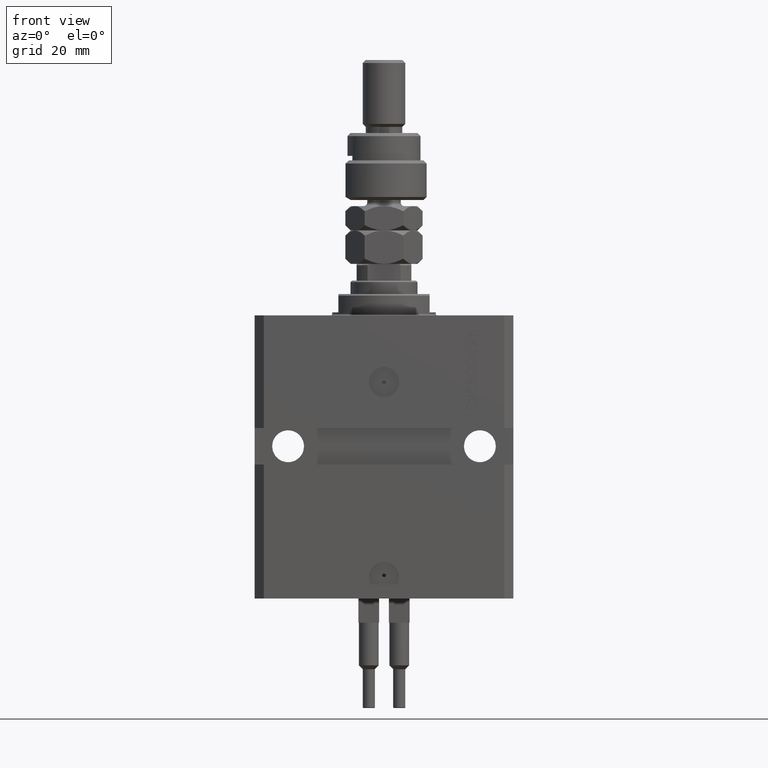
[diagram: clean part render]
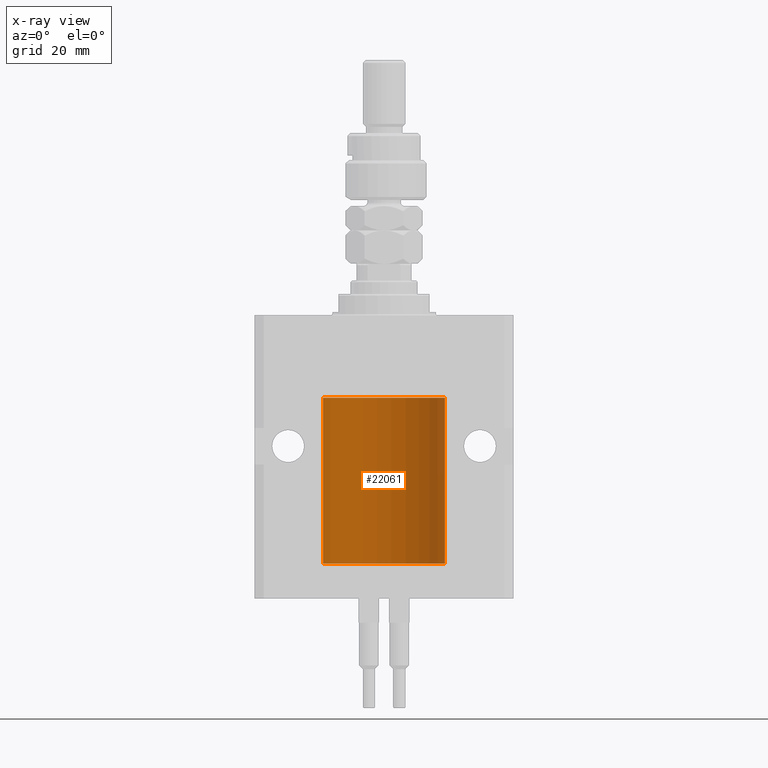
[diagram: x-ray — body ghosted, one internal face saturated and labeled with its STEP entity id]
A machine part, front view, then the same camera in x-ray: the body is ghosted and one INTERNAL B-rep face — a face not visible from any outside direction — is saturated and labeled: STEP entity #22061.
In plain terms, the highlighted cylindrical surface (partial cylindrical patch) has radius 20 mm, axis along (0, 0, 1).
Its self-contained STEP definition (entity closure, byte-faithful):
#472 = CIRCLE ( 'NONE', #19664, 20.00000000000000000 ) ;
#1478 = LINE ( 'NONE', #24497, #15558 ) ;
#1760 = DIRECTION ( 'NONE',  ( 1.000000000000000000, 0.000000000000000000, 0.000000000000000000 ) ) ;
#2613 = VECTOR ( 'NONE', #38896, 1000.000000000000000 ) ;
#2950 = ORIENTED_EDGE ( 'NONE', *, *, #34593, .F. ) ;
#3621 = CARTESIAN_POINT ( 'NONE',  ( 19.99769474220011034, 0.3253030616682413001, -78.44140633897630721 ) ) ;
#3774 = CARTESIAN_POINT ( 'NONE',  ( -20.00000000000000000, 2.449293598294706513E-15, -81.60000000000000853 ) ) ;
#3970 = CARTESIAN_POINT ( 'NONE',  ( 19.99023198964934167, 0.6250000000002757794, -79.16311014829327064 ) ) ;
#4639 = CARTESIAN_POINT ( 'NONE',  ( 19.99253733128256627, 0.5586305947779004466, -78.67476036735259015 ) ) ;
#5763 = B_SPLINE_CURVE_WITH_KNOTS ( 'NONE', 3,
 ( #23995, #39466, #4639, #3621, #24259, #28438 ),
 .UNSPECIFIED., .F., .F.,
 ( 4, 2, 4 ),
 ( 0.0009772989342736221503, 0.001465726722058849005, 0.001954154509844075859 ),
 .UNSPECIFIED. ) ;
#6201 = VERTEX_POINT ( 'NONE', #48974 ) ;
#6513 = B_SPLINE_CURVE_WITH_KNOTS ( 'NONE', 3,
 ( #37005, #16878, #48041, #12194, #44111, #48557, #17130, #12443, #8771, #28130, #24212, #20288 ),
 .UNSPECIFIED., .F., .F.,
 ( 4, 2, 2, 2, 2, 4 ),
 ( 1.522880481566060999E-18, 0.0002442693137305179392, 0.0004885386274610343605, 0.0009770772549220966934, 0.001465615882383158918, 0.001954154509844221576 ),
 .UNSPECIFIED. ) ;
#6522 = ORIENTED_EDGE ( 'NONE', *, *, #28955, .T. ) ;
#7773 = CARTESIAN_POINT ( 'NONE',  ( 20.00000000000000000, 0.000000000000000000, -81.60000000000000853 ) ) ;
#7904 = CARTESIAN_POINT ( 'NONE',  ( 19.99023198964909298, 0.6250000000081574747, -78.99999999999911893 ) ) ;
#8274 = CARTESIAN_POINT ( 'NONE',  ( 20.00000000000000000, 0.000000000000000000, -81.60000000000000853 ) ) ;
#8771 = CARTESIAN_POINT ( 'NONE',  ( -19.99253506710754991, 0.5587120480776742726, -79.32511620830248944 ) ) ;
#8963 = CARTESIAN_POINT ( 'NONE',  ( -20.00000000000000000, 2.449293598294706513E-15, -81.60000000000000853 ) ) ;
#10126 = CARTESIAN_POINT ( 'NONE',  ( -20.00000000000000000, 2.449293598294706513E-15, -81.60000000000000853 ) ) ;
#10411 = DIRECTION ( 'NONE',  ( 0.000000000000000000, 0.000000000000000000, 1.000000000000000000 ) ) ;
#11204 = VERTEX_POINT ( 'NONE', #7773 ) ;
#11833 = CARTESIAN_POINT ( 'NONE',  ( 19.99256353007439202, 0.5574106582031174151, -79.32639035180115172 ) ) ;
#12100 = EDGE_CURVE ( 'NONE', #11204, #31916, #27422, .T. ) ;
#12169 = DIRECTION ( 'NONE',  ( -0.000000000000000000, -0.000000000000000000, 1.000000000000000000 ) ) ;
#12194 = CARTESIAN_POINT ( 'NONE',  ( -19.99766197842594551, 0.3150331617867603295, -78.45402070102504410 ) ) ;
#12404 = AXIS2_PLACEMENT_3D ( 'NONE', #34989, #10411, #22703 ) ;
#12443 = CARTESIAN_POINT ( 'NONE',  ( -19.99023018003212471, 0.6250578794725522025, -79.16284809704971792 ) ) ;
#13131 = EDGE_CURVE ( 'NONE', #19476, #41744, #6513, .T. ) ;
#13166 = CARTESIAN_POINT ( 'NONE',  ( 0.000000000000000000, 0.000000000000000000, -81.60000000000000853 ) ) ;
#14260 = CARTESIAN_POINT ( 'NONE',  ( 19.99638788807192924, 0.3844440352705359998, -79.49948058986481669 ) ) ;
#14977 = CARTESIAN_POINT ( 'NONE',  ( 20.00000000000000000, -4.058908006348821872E-15, -79.62500000000000000 ) ) ;
#15558 = VECTOR ( 'NONE', #28678, 1000.000000000000000 ) ;
#15813 = ORIENTED_EDGE ( 'NONE', *, *, #30493, .F. ) ;
#16062 = DIRECTION ( 'NONE',  ( -0.000000000000000000, -0.000000000000000000, 1.000000000000000000 ) ) ;
#16228 = VERTEX_POINT ( 'NONE', #14977 ) ;
#16312 = LINE ( 'NONE', #3774, #20293 ) ;
#16878 = CARTESIAN_POINT ( 'NONE',  ( -19.99999999999999289, 0.08259581631026131909, -78.37499999999998579 ) ) ;
#17130 = CARTESIAN_POINT ( 'NONE',  ( -19.99023380173166231, 0.6249420416828449509, -78.83670793056396064 ) ) ;
#17153 = EDGE_CURVE ( 'NONE', #16228, #6201, #48079, .T. ) ;
#18963 = VERTEX_POINT ( 'NONE', #42051 ) ;
#19362 = ORIENTED_EDGE ( 'NONE', *, *, #17153, .T. ) ;
#19476 = VERTEX_POINT ( 'NONE', #27828 ) ;
#19664 = AXIS2_PLACEMENT_3D ( 'NONE', #21886, #26056, #1760 ) ;
#19676 = CARTESIAN_POINT ( 'NONE',  ( 19.99766100389833312, 0.3150982863324784944, -79.54594438241281296 ) ) ;
#20288 = CARTESIAN_POINT ( 'NONE',  ( -20.00000000000010303, 3.580159286679549072E-13, -79.62500000000332534 ) ) ;
#20293 = VECTOR ( 'NONE', #16062, 1000.000000000000000 ) ;
#21886 = CARTESIAN_POINT ( 'NONE',  ( 0.000000000000000000, 0.000000000000000000, -27.10000000000000142 ) ) ;
#22061 = ADVANCED_FACE ( 'NONE', ( #28358 ), #36977, .F. ) ;
#22379 = VERTEX_POINT ( 'NONE', #25655 ) ;
#22678 = LINE ( 'NONE', #10126, #2613 ) ;
#22703 = DIRECTION ( 'NONE',  ( 1.000000000000000000, 0.000000000000000000, 0.000000000000000000 ) ) ;
#22906 = CARTESIAN_POINT ( 'NONE',  ( 20.00000000000010303, 3.555666352936568165E-13, -78.37499999999667466 ) ) ;
#23847 = CARTESIAN_POINT ( 'NONE',  ( 19.99947351343144319, 0.1636818329565372654, -79.60872855715646779 ) ) ;
#23995 = CARTESIAN_POINT ( 'NONE',  ( 19.99023198964909298, 0.6250000000081574747, -78.99999999999911893 ) ) ;
#24212 = CARTESIAN_POINT ( 'NONE',  ( -20.00000000000000355, 0.1631688615953343080, -79.62499999999984368 ) ) ;
#24259 = CARTESIAN_POINT ( 'NONE',  ( 19.99999999999999645, 0.1631318418333158327, -78.37500000000015632 ) ) ;
#24261 = VECTOR ( 'NONE', #51220, 1000.000000000000000 ) ;
#24449 = ORIENTED_EDGE ( 'NONE', *, *, #12100, .F. ) ;
#24497 = CARTESIAN_POINT ( 'NONE',  ( 20.00000000000000000, 0.000000000000000000, -81.60000000000000853 ) ) ;
#25655 = CARTESIAN_POINT ( 'NONE',  ( -20.00000000000000000, 2.449293598294706513E-15, -27.10000000000000142 ) ) ;
#26023 = CARTESIAN_POINT ( 'NONE',  ( 19.99999999999999645, 0.08261455565447825555, -79.62499999999997158 ) ) ;
#26056 = DIRECTION ( 'NONE',  ( 0.000000000000000000, 0.000000000000000000, 1.000000000000000000 ) ) ;
#26967 = CARTESIAN_POINT ( 'NONE',  ( -20.00000000000010303, 3.580159286679549072E-13, -79.62500000000332534 ) ) ;
#27422 = CIRCLE ( 'NONE', #12404, 20.00000000000000000 ) ;
#27828 = CARTESIAN_POINT ( 'NONE',  ( -20.00000000000000000, -1.124177324826063808E-14, -78.37500000000000000 ) ) ;
#28130 = CARTESIAN_POINT ( 'NONE',  ( -19.99769349528941831, 0.3253804398728615266, -79.55855820727680339 ) ) ;
#28358 = FACE_OUTER_BOUND ( 'NONE', #38594, .T. ) ;
#28438 = CARTESIAN_POINT ( 'NONE',  ( 20.00000000000010303, 3.555666352936568165E-13, -78.37499999999667466 ) ) ;
#28678 = DIRECTION ( 'NONE',  ( -0.000000000000000000, -0.000000000000000000, 1.000000000000000000 ) ) ;
#28955 = EDGE_CURVE ( 'NONE', #11204, #16228, #44117, .T. ) ;
#30493 = EDGE_CURVE ( 'NONE', #31916, #41744, #22678, .T. ) ;
#31916 = VERTEX_POINT ( 'NONE', #8963 ) ;
#32026 = DIRECTION ( 'NONE',  ( 1.000000000000000000, 0.000000000000000000, 0.000000000000000000 ) ) ;
#34593 = EDGE_CURVE ( 'NONE', #19476, #22379, #16312, .T. ) ;
#34989 = CARTESIAN_POINT ( 'NONE',  ( 0.000000000000000000, 0.000000000000000000, -81.60000000000000853 ) ) ;
#35622 = CARTESIAN_POINT ( 'NONE',  ( 20.00000000000000000, -4.058908006348821872E-15, -79.62500000000000000 ) ) ;
#36977 = CYLINDRICAL_SURFACE ( 'NONE', #39142, 20.00000000000000000 ) ;
#37005 = CARTESIAN_POINT ( 'NONE',  ( -20.00000000000000000, -1.124177324826063808E-14, -78.37500000000000000 ) ) ;
#38594 = EDGE_LOOP ( 'NONE', ( #15813, #24449, #6522, #19362, #50123, #43428, #42985, #2950, #46925 ) ) ;
#38896 = DIRECTION ( 'NONE',  ( -0.000000000000000000, -0.000000000000000000, 1.000000000000000000 ) ) ;
#39142 = AXIS2_PLACEMENT_3D ( 'NONE', #13166, #12169, #32026 ) ;
#39466 = CARTESIAN_POINT ( 'NONE',  ( 19.99023198964936299, 0.6249999999995806688, -78.83696384779808852 ) ) ;
#41744 = VERTEX_POINT ( 'NONE', #26967 ) ;
#42051 = CARTESIAN_POINT ( 'NONE',  ( 20.00000000000000000, 0.000000000000000000, -27.10000000000000142 ) ) ;
#42985 = ORIENTED_EDGE ( 'NONE', *, *, #43100, .T. ) ;
#43100 = EDGE_CURVE ( 'NONE', #18963, #22379, #472, .T. ) ;
#43428 = ORIENTED_EDGE ( 'NONE', *, *, #44265, .T. ) ;
#44111 = CARTESIAN_POINT ( 'NONE',  ( -19.99638934703457238, 0.3843678041337651452, -78.50046362978099523 ) ) ;
#44117 = LINE ( 'NONE', #8274, #24261 ) ;
#44265 = EDGE_CURVE ( 'NONE', #44329, #18963, #1478, .T. ) ;
#44329 = VERTEX_POINT ( 'NONE', #22906 ) ;
#46925 = ORIENTED_EDGE ( 'NONE', *, *, #13131, .T. ) ;
#48041 = CARTESIAN_POINT ( 'NONE',  ( -19.99947377218718003, 0.1636439183262797525, -78.39126364004653169 ) ) ;
#48079 = B_SPLINE_CURVE_WITH_KNOTS ( 'NONE', 3,
 ( #35622, #26023, #23847, #19676, #14260, #11833, #3970, #7904 ),
 .UNSPECIFIED., .F., .F.,
 ( 4, 2, 2, 4 ),
 ( 3.944467879762244826E-18, 0.0002443247335684012008, 0.0004886494671367983900, 0.0009772989342736221503 ),
 .UNSPECIFIED. ) ;
#48557 = CARTESIAN_POINT ( 'NONE',  ( -19.99256581701871838, 0.5573276956901996870, -78.67348565770949165 ) ) ;
#48613 = EDGE_CURVE ( 'NONE', #6201, #44329, #5763, .T. ) ;
#48974 = CARTESIAN_POINT ( 'NONE',  ( 19.99023198964909298, 0.6250000000081574747, -78.99999999999911893 ) ) ;
#50123 = ORIENTED_EDGE ( 'NONE', *, *, #48613, .T. ) ;
#51220 = DIRECTION ( 'NONE',  ( -0.000000000000000000, -0.000000000000000000, 1.000000000000000000 ) ) ;